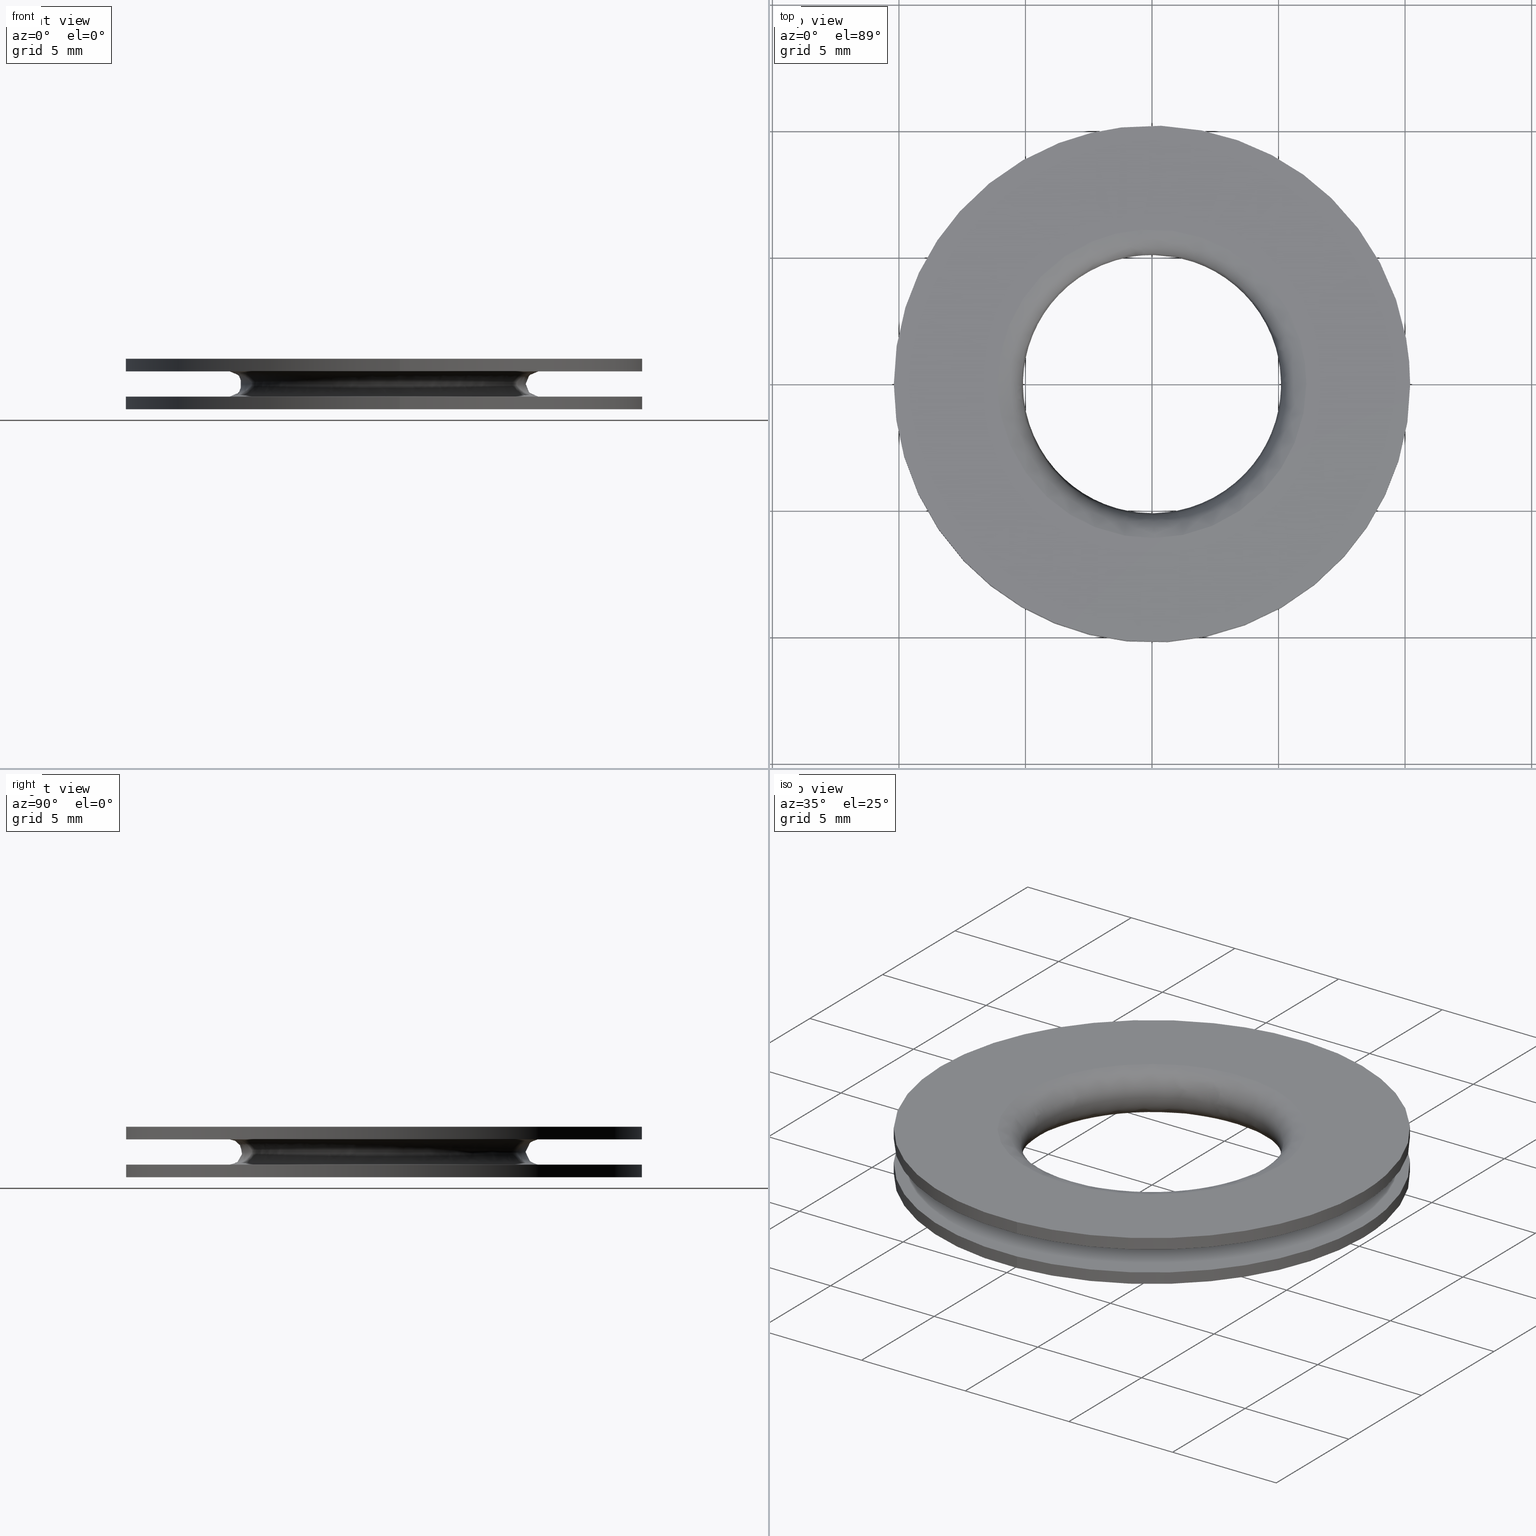
[diagram: canonical four-view strip — front | top / right | iso, engineering-drawing reading convention]
A machine part, canonical four-view strip (front | top / right | iso — engineering-drawing reading convention). The complete STEP part file that produces these views, byte-faithful:
ISO-10303-21;
HEADER;
/****************************************************************
 * Generated by software with PDE/Lib inside                    *
 * PDElib Version 4.4.1-0003, patched  Thursday August 19 11:58 *
 * International Technegroup Inc. (www.iti-oh.com)              *
 ****************************************************************/
FILE_DESCRIPTION((''),'2;1');
FILE_NAME('','2005-07-15T13:06:22',(''),(''),'','CADfix','');
FILE_SCHEMA(('AUTOMOTIVE_DESIGN'));
ENDSEC;
DATA;
#5=APPLICATION_CONTEXT('automotive design');
#6=APPLICATION_PROTOCOL_DEFINITION('Draft International Standard','automotive_design',1998,#5);
#7=PRODUCT_CONTEXT('None',#5,'mechanical');
#8=PRODUCT('grommet','','None',(#7));
#9=PRODUCT_RELATED_PRODUCT_CATEGORY('part','description',(#8));
#10=PRODUCT_DEFINITION_FORMATION('None','None',#8);
#11=PRODUCT_DEFINITION_CONTEXT('part definition',#5,'design');
#12=PRODUCT_DEFINITION('None','None',#10,#11);
#18=(NAMED_UNIT(*)PLANE_ANGLE_UNIT()SI_UNIT($,.RADIAN.));
#19=DIMENSIONAL_EXPONENTS(0.0,0.0,0.0,0.0,0.0,0.0,0.0);
#20=PLANE_ANGLE_MEASURE_WITH_UNIT(PLANE_ANGLE_MEASURE(0.017453292500000),#18);
#24=(CONVERSION_BASED_UNIT('DEGREE',#20)NAMED_UNIT(#19)PLANE_ANGLE_UNIT());
#28=(NAMED_UNIT(*)SI_UNIT($,.STERADIAN.)SOLID_ANGLE_UNIT());
#32=(LENGTH_UNIT()NAMED_UNIT(*)SI_UNIT(.MILLI.,.METRE.));
#34=UNCERTAINTY_MEASURE_WITH_UNIT(LENGTH_MEASURE(0.001000000000000),#32,'DISTANCE_ACCURACY_VALUE','');
#36=(GEOMETRIC_REPRESENTATION_CONTEXT(3)GLOBAL_UNCERTAINTY_ASSIGNED_CONTEXT((#34))GLOBAL_UNIT_ASSIGNED_CONTEXT((#24,#28,#32))REPRESENTATION_CONTEXT('None','None'));
#37=AXIS2_PLACEMENT_3D('',#38,#39,#40);
#38=CARTESIAN_POINT('',(0.0,0.0,0.0));
#39=DIRECTION('',(0.0,0.0,1.0));
#40=DIRECTION('',(1.0,0.0,0.0));
#41=ADVANCED_BREP_SHAPE_REPRESENTATION('',(#37,#973),#36);
#42=PRODUCT_DEFINITION_SHAPE('','',#12);
#43=SHAPE_DEFINITION_REPRESENTATION(#42,#41);
#44=CARTESIAN_POINT('',(-1.203949075464702,10.128696175899870,2.012500000000001));
#45=CARTESIAN_POINT('',(-0.914070142492644,10.163152681188162,2.012500000000000));
#46=CARTESIAN_POINT('',(-0.622695042207002,10.180973945768240,2.012500000000000));
#47=CARTESIAN_POINT('',(9.558278903561243,10.803668987975243,2.012500000000000));
#48=CARTESIAN_POINT('',(10.180973945768240,0.622695042207002,2.012500000000000));
#49=CARTESIAN_POINT('',(10.803668987975243,-9.558278903561243,2.012500000000000));
#50=CARTESIAN_POINT('',(0.622695042207002,-10.180973945768240,2.012500000000000));
#51=CARTESIAN_POINT('',(-1.203949075464702,10.128696175899870,1.487187500000000));
#52=CARTESIAN_POINT('',(-0.914070142492644,10.163152681188162,1.487187499999999));
#53=CARTESIAN_POINT('',(-0.622695042207002,10.180973945768240,1.487187500000000));
#54=CARTESIAN_POINT('',(9.558278903561243,10.803668987975243,1.487187499999999));
#55=CARTESIAN_POINT('',(10.180973945768240,0.622695042207002,1.487187500000000));
#56=CARTESIAN_POINT('',(10.803668987975243,-9.558278903561243,1.487187499999999));
#57=CARTESIAN_POINT('',(0.622695042207002,-10.180973945768240,1.487187500000000));
#65=(BOUNDED_SURFACE()B_SPLINE_SURFACE(2,1,((#44,#51),(#45,#52),(#46,#53),(#47,#54),(#48,#55),(#49,#56),(#50,#57)),.UNSPECIFIED.,.F.,.F.,.U.)B_SPLINE_SURFACE_WITH_KNOTS((3,2,2,3),(2,2),(0.0,0.675996467518722,17.575908155486751,34.475819843454779),(0.0,1.0),.UNSPECIFIED.)GEOMETRIC_REPRESENTATION_ITEM()RATIONAL_B_SPLINE_SURFACE(((0.977505800795127,0.977505800795127),(0.988284271247462,0.988284271247462),(1.0,1.0),(0.707106781186548,0.707106781186548),(1.0,1.0),(0.707106781186548,0.707106781186548),(1.0,1.0)))REPRESENTATION_ITEM('')SURFACE());
#66=CARTESIAN_POINT('',(-1.203942625551559,10.128696942565650,1.500000000000203));
#67=VERTEX_POINT('',#66);
#68=CARTESIAN_POINT('',(10.199999000000000,0.0,1.500000000000000));
#69=VERTEX_POINT('',#68);
#70=CARTESIAN_POINT('',(-1.203942625551559,10.128696942565654,1.500000000000203));
#71=CARTESIAN_POINT('',(-0.604082702175272,10.199998999999998,1.500000000000000));
#72=CARTESIAN_POINT('',(0.0,10.199999000000000,1.500000000000000));
#73=CARTESIAN_POINT('',(10.199999000000002,10.199999000000002,1.500000000000000));
#74=CARTESIAN_POINT('',(10.199999000000000,0.0,1.500000000000000));
#82=(BOUNDED_CURVE()B_SPLINE_CURVE(2,(#70,#71,#72,#73,#74),.UNSPECIFIED.,.F.,.U.)B_SPLINE_CURVE_WITH_KNOTS((3,2,3),(0.229562581136241,0.250000000000000,0.500000000000000),.UNSPECIFIED.)CURVE()GEOMETRIC_REPRESENTATION_ITEM()RATIONAL_B_SPLINE_CURVE((0.956026965128767,0.976056074419019,1.0,0.707106781186548,1.0))REPRESENTATION_ITEM(''));
#83=EDGE_CURVE('',#67,#69,#82,.T.);
#84=ORIENTED_EDGE('',*,*,#83,.F.);
#85=CARTESIAN_POINT('',(-1.203942705108498,10.128696933109209,2.0));
#86=VERTEX_POINT('',#85);
#87=CARTESIAN_POINT('',(-1.203942705108498,10.128696933109209,2.0));
#88=CARTESIAN_POINT('',(-1.203942625551559,10.128696942565650,1.500000000000203));
#89=QUASI_UNIFORM_CURVE('',1,(#87,#88),.UNSPECIFIED.,.F.,.U.);
#90=EDGE_CURVE('',#86,#67,#89,.T.);
#91=ORIENTED_EDGE('',*,*,#90,.F.);
#92=CARTESIAN_POINT('',(10.199999000000000,0.0,2.0));
#93=VERTEX_POINT('',#92);
#94=CARTESIAN_POINT('',(-1.203942705108499,10.128696933109207,2.000000000000000));
#95=CARTESIAN_POINT('',(-0.604082742374266,10.199999000000000,2.000000000000000));
#96=CARTESIAN_POINT('',(0.0,10.199999000000000,2.0));
#97=CARTESIAN_POINT('',(10.199999000000002,10.199999000000002,2.000000000000000));
#98=CARTESIAN_POINT('',(10.199999000000000,0.0,2.0));
#106=(BOUNDED_CURVE()B_SPLINE_CURVE(2,(#94,#95,#96,#97,#98),.UNSPECIFIED.,.F.,.U.)B_SPLINE_CURVE_WITH_KNOTS((3,2,3),(0.229562579808786,0.250000000000000,0.500000000000000),.UNSPECIFIED.)CURVE()GEOMETRIC_REPRESENTATION_ITEM()RATIONAL_B_SPLINE_CURVE((0.956026962526900,0.976056072863809,1.0,0.707106781186548,1.0))REPRESENTATION_ITEM(''));
#107=EDGE_CURVE('',#86,#93,#106,.T.);
#108=ORIENTED_EDGE('',*,*,#107,.T.);
#109=CARTESIAN_POINT('',(0.622691443881657,-10.180974165849969,2.0));
#110=VERTEX_POINT('',#109);
#111=CARTESIAN_POINT('',(10.199999000000000,0.0,2.0));
#112=CARTESIAN_POINT('',(10.199999000000002,-9.595204339361704,2.000000000000000));
#113=CARTESIAN_POINT('',(0.622691443881657,-10.180974165849973,2.0));
#121=(BOUNDED_CURVE()B_SPLINE_CURVE(2,(#111,#112,#113),.UNSPECIFIED.,.F.,.U.)B_SPLINE_CURVE_WITH_KNOTS((3,3),(0.500000000000000,0.739333023226263),.UNSPECIFIED.)CURVE()GEOMETRIC_REPRESENTATION_ITEM()RATIONAL_B_SPLINE_CURVE((1.0,0.719603921835620,0.976072172374189))REPRESENTATION_ITEM(''));
#122=EDGE_CURVE('',#93,#110,#121,.T.);
#123=ORIENTED_EDGE('',*,*,#122,.T.);
#124=CARTESIAN_POINT('',(0.622691398963892,-10.180974168597229,1.500000000000134));
#125=VERTEX_POINT('',#124);
#126=CARTESIAN_POINT('',(0.622691443881657,-10.180974165849969,2.0));
#127=CARTESIAN_POINT('',(0.622691398963892,-10.180974168597229,1.500000000000134));
#128=QUASI_UNIFORM_CURVE('',1,(#126,#127),.UNSPECIFIED.,.F.,.U.);
#129=EDGE_CURVE('',#110,#125,#128,.T.);
#130=ORIENTED_EDGE('',*,*,#129,.T.);
#131=CARTESIAN_POINT('',(10.199999000000000,0.0,1.500000000000000));
#132=CARTESIAN_POINT('',(10.199999000000002,-9.595204381774195,1.500000000000000));
#133=CARTESIAN_POINT('',(0.622691398963892,-10.180974168597228,1.500000000000133));
#141=(BOUNDED_CURVE()B_SPLINE_CURVE(2,(#131,#132,#133),.UNSPECIFIED.,.F.,.U.)B_SPLINE_CURVE_WITH_KNOTS((3,3),(0.500000000000000,0.739333023987528),.UNSPECIFIED.)CURVE()GEOMETRIC_REPRESENTATION_ITEM()RATIONAL_B_SPLINE_CURVE((1.0,0.719603920943743,0.976072174005725))REPRESENTATION_ITEM(''));
#142=EDGE_CURVE('',#69,#125,#141,.T.);
#143=ORIENTED_EDGE('',*,*,#142,.F.);
#144=EDGE_LOOP('',(#84,#91,#108,#123,#130,#143));
#145=FACE_OUTER_BOUND('',#144,.T.);
#146=ADVANCED_FACE('',(#145),#65,.T.);
#147=CARTESIAN_POINT('',(0.622695042207002,-10.180973945768240,2.012500000000000));
#148=CARTESIAN_POINT('',(-9.558278903561243,-10.803668987975243,2.012500000000000));
#149=CARTESIAN_POINT('',(-10.180973945768240,-0.622695042207002,2.012500000000000));
#150=CARTESIAN_POINT('',(-10.769018150885582,8.991742725019419,2.012500000000000));
#151=CARTESIAN_POINT('',(-1.203949075464702,10.128696175899870,2.012500000000001));
#152=CARTESIAN_POINT('',(0.622695042207002,-10.180973945768240,1.487187500000000));
#153=CARTESIAN_POINT('',(-9.558278903561243,-10.803668987975243,1.487187499999999));
#154=CARTESIAN_POINT('',(-10.180973945768240,-0.622695042207002,1.487187500000000));
#155=CARTESIAN_POINT('',(-10.769018150885582,8.991742725019419,1.487187500000000));
#156=CARTESIAN_POINT('',(-1.203949075464702,10.128696175899870,1.487187500000000));
#164=(BOUNDED_SURFACE()B_SPLINE_SURFACE(2,1,((#147,#152),(#148,#153),(#149,#154),(#150,#155),(#151,#156)),.UNSPECIFIED.,.F.,.F.,.U.)B_SPLINE_SURFACE_WITH_KNOTS((3,2,3),(2,2),(0.0,16.899911687968029,33.123826908417342),(0.0,1.0),.UNSPECIFIED.)GEOMETRIC_REPRESENTATION_ITEM()RATIONAL_B_SPLINE_SURFACE(((1.0,1.0),(0.707106781186548,0.707106781186548),(1.0,1.0),(0.718822509939086,0.718822509939086),(0.977505800795127,0.977505800795127)))REPRESENTATION_ITEM('')SURFACE());
#165=CARTESIAN_POINT('',(-10.199999000000000,0.0,1.500000000000000));
#166=VERTEX_POINT('',#165);
#167=CARTESIAN_POINT('',(-10.199999000000000,0.0,1.500000000000000));
#168=CARTESIAN_POINT('',(-10.199999000000000,9.059385086118825,1.500000000000000));
#169=CARTESIAN_POINT('',(-1.203942625551559,10.128696942565654,1.500000000000203));
#177=(BOUNDED_CURVE()B_SPLINE_CURVE(2,(#167,#168,#169),.UNSPECIFIED.,.F.,.U.)B_SPLINE_CURVE_WITH_KNOTS((3,3),(0.0,0.229562581136241),.UNSPECIFIED.)CURVE()GEOMETRIC_REPRESENTATION_ITEM()RATIONAL_B_SPLINE_CURVE((1.0,0.731050706767529,0.956026965128767))REPRESENTATION_ITEM(''));
#178=EDGE_CURVE('',#166,#67,#177,.T.);
#179=ORIENTED_EDGE('',*,*,#178,.F.);
#180=CARTESIAN_POINT('',(0.622691398963892,-10.180974168597228,1.500000000000133));
#181=CARTESIAN_POINT('',(0.311636328363689,-10.199999000000005,1.500000000000000));
#182=CARTESIAN_POINT('',(0.0,-10.199999000000000,1.500000000000000));
#183=CARTESIAN_POINT('',(-10.199999000000002,-10.199999000000002,1.500000000000000));
#184=CARTESIAN_POINT('',(-10.199999000000000,0.0,1.500000000000000));
#192=(BOUNDED_CURVE()B_SPLINE_CURVE(2,(#180,#181,#182,#183,#184),.UNSPECIFIED.,.F.,.U.)B_SPLINE_CURVE_WITH_KNOTS((3,2,3),(0.739333023987528,0.750000000000000,1.0),.UNSPECIFIED.)CURVE()GEOMETRIC_REPRESENTATION_ITEM()RATIONAL_B_SPLINE_CURVE((0.976072174005725,0.987502860242804,1.0,0.707106781186548,1.0))REPRESENTATION_ITEM(''));
#193=EDGE_CURVE('',#125,#166,#192,.T.);
#194=ORIENTED_EDGE('',*,*,#193,.F.);
#195=ORIENTED_EDGE('',*,*,#129,.F.);
#196=CARTESIAN_POINT('',(-10.199999000000000,0.0,2.0));
#197=VERTEX_POINT('',#196);
#198=CARTESIAN_POINT('',(0.622691443881657,-10.180974165849973,2.0));
#199=CARTESIAN_POINT('',(0.311636350885541,-10.199999000000000,2.000000000000000));
#200=CARTESIAN_POINT('',(0.0,-10.199999000000000,2.0));
#201=CARTESIAN_POINT('',(-10.199999000000002,-10.199999000000002,2.000000000000000));
#202=CARTESIAN_POINT('',(-10.199999000000000,0.0,2.0));
#210=(BOUNDED_CURVE()B_SPLINE_CURVE(2,(#198,#199,#200,#201,#202),.UNSPECIFIED.,.F.,.U.)B_SPLINE_CURVE_WITH_KNOTS((3,2,3),(0.739333023226263,0.750000000000000,1.0),.UNSPECIFIED.)CURVE()GEOMETRIC_REPRESENTATION_ITEM()RATIONAL_B_SPLINE_CURVE((0.976072172374189,0.987502859350927,1.0,0.707106781186548,1.0))REPRESENTATION_ITEM(''));
#211=EDGE_CURVE('',#110,#197,#210,.T.);
#212=ORIENTED_EDGE('',*,*,#211,.T.);
#213=CARTESIAN_POINT('',(-10.199999000000000,0.0,2.0));
#214=CARTESIAN_POINT('',(-10.199999000000002,9.059385014459993,1.999999999999999));
#215=CARTESIAN_POINT('',(-1.203942705108499,10.128696933109207,2.000000000000000));
#223=(BOUNDED_CURVE()B_SPLINE_CURVE(2,(#213,#214,#215),.UNSPECIFIED.,.F.,.U.)B_SPLINE_CURVE_WITH_KNOTS((3,3),(0.0,0.229562579808786),.UNSPECIFIED.)CURVE()GEOMETRIC_REPRESENTATION_ITEM()RATIONAL_B_SPLINE_CURVE((1.0,0.731050708322738,0.956026962526900))REPRESENTATION_ITEM(''));
#224=EDGE_CURVE('',#197,#86,#223,.T.);
#225=ORIENTED_EDGE('',*,*,#224,.T.);
#226=ORIENTED_EDGE('',*,*,#90,.T.);
#227=EDGE_LOOP('',(#179,#194,#195,#212,#225,#226));
#228=FACE_OUTER_BOUND('',#227,.T.);
#229=ADVANCED_FACE('',(#228),#164,.T.);
#230=CARTESIAN_POINT('',(-1.203949075464702,10.128696175899870,0.512500000000000));
#231=CARTESIAN_POINT('',(-0.914070142492644,10.163152681188162,0.512500000000000));
#232=CARTESIAN_POINT('',(-0.622695042207002,10.180973945768240,0.512500000000000));
#233=CARTESIAN_POINT('',(9.558278903561243,10.803668987975243,0.512500000000000));
#234=CARTESIAN_POINT('',(10.180973945768240,0.622695042207002,0.512500000000000));
#235=CARTESIAN_POINT('',(10.803668987975243,-9.558278903561243,0.512500000000000));
#236=CARTESIAN_POINT('',(0.622695042207002,-10.180973945768240,0.512500000000000));
#237=CARTESIAN_POINT('',(-1.203949075464702,10.128696175899870,-0.012812500000000));
#238=CARTESIAN_POINT('',(-0.914070142492644,10.163152681188162,-0.012812500000000));
#239=CARTESIAN_POINT('',(-0.622695042207002,10.180973945768240,-0.012812500000000));
#240=CARTESIAN_POINT('',(9.558278903561243,10.803668987975243,-0.012812500000000));
#241=CARTESIAN_POINT('',(10.180973945768240,0.622695042207002,-0.012812500000000));
#242=CARTESIAN_POINT('',(10.803668987975243,-9.558278903561243,-0.012812500000000));
#243=CARTESIAN_POINT('',(0.622695042207002,-10.180973945768240,-0.012812500000000));
#251=(BOUNDED_SURFACE()B_SPLINE_SURFACE(2,1,((#230,#237),(#231,#238),(#232,#239),(#233,#240),(#234,#241),(#235,#242),(#236,#243)),.UNSPECIFIED.,.F.,.F.,.U.)B_SPLINE_SURFACE_WITH_KNOTS((3,2,2,3),(2,2),(0.0,0.675996467518722,17.575908155486751,34.475819843454779),(0.0,1.0),.UNSPECIFIED.)GEOMETRIC_REPRESENTATION_ITEM()RATIONAL_B_SPLINE_SURFACE(((0.977505800795127,0.977505800795127),(0.988284271247462,0.988284271247462),(1.0,1.0),(0.707106781186548,0.707106781186548),(1.0,1.0),(0.707106781186548,0.707106781186548),(1.0,1.0)))REPRESENTATION_ITEM('')SURFACE());
#252=CARTESIAN_POINT('',(-1.203942627444646,10.128696942340630,0.499999999999797));
#253=VERTEX_POINT('',#252);
#254=CARTESIAN_POINT('',(10.199999000000000,0.0,0.500000000000000));
#255=VERTEX_POINT('',#254);
#256=CARTESIAN_POINT('',(-1.203942627444646,10.128696942340632,0.499999999999797));
#257=CARTESIAN_POINT('',(-0.604082703131821,10.199998999999998,0.500000000000000));
#258=CARTESIAN_POINT('',(0.0,10.199999000000000,0.500000000000000));
#259=CARTESIAN_POINT('',(10.199999000000002,10.199999000000002,0.500000000000000));
#260=CARTESIAN_POINT('',(10.199999000000000,0.0,0.500000000000000));
#268=(BOUNDED_CURVE()B_SPLINE_CURVE(2,(#256,#257,#258,#259,#260),.UNSPECIFIED.,.F.,.U.)B_SPLINE_CURVE_WITH_KNOTS((3,2,3),(0.229562581104653,0.250000000000000,0.500000000000000),.UNSPECIFIED.)CURVE()GEOMETRIC_REPRESENTATION_ITEM()RATIONAL_B_SPLINE_CURVE((0.956026965066855,0.976056074382012,1.0,0.707106781186548,1.0))REPRESENTATION_ITEM(''));
#269=EDGE_CURVE('',#253,#255,#268,.T.);
#270=ORIENTED_EDGE('',*,*,#269,.T.);
#271=CARTESIAN_POINT('',(0.622691400032725,-10.180974168531860,0.499999999999866));
#272=VERTEX_POINT('',#271);
#273=CARTESIAN_POINT('',(10.199999000000000,0.0,0.500000000000000));
#274=CARTESIAN_POINT('',(10.199999000000000,-9.595204380764978,0.500000000000000));
#275=CARTESIAN_POINT('',(0.622691400032725,-10.180974168531858,0.499999999999866));
#283=(BOUNDED_CURVE()B_SPLINE_CURVE(2,(#273,#274,#275),.UNSPECIFIED.,.F.,.U.)B_SPLINE_CURVE_WITH_KNOTS((3,3),(0.500000000000000,0.739333023969413),.UNSPECIFIED.)CURVE()GEOMETRIC_REPRESENTATION_ITEM()RATIONAL_B_SPLINE_CURVE((1.0,0.719603920964966,0.976072173966902))REPRESENTATION_ITEM(''));
#284=EDGE_CURVE('',#255,#272,#283,.T.);
#285=ORIENTED_EDGE('',*,*,#284,.T.);
#286=CARTESIAN_POINT('',(0.622691443881657,-10.180974165849969,-2.602085E-017));
#287=VERTEX_POINT('',#286);
#288=CARTESIAN_POINT('',(0.622691400032725,-10.180974168531860,0.499999999999866));
#289=CARTESIAN_POINT('',(0.622691443881657,-10.180974165849969,-2.602085E-017));
#290=QUASI_UNIFORM_CURVE('',1,(#288,#289),.UNSPECIFIED.,.F.,.U.);
#291=EDGE_CURVE('',#272,#287,#290,.T.);
#292=ORIENTED_EDGE('',*,*,#291,.T.);
#293=CARTESIAN_POINT('',(10.199999000000000,0.0,0.0));
#294=VERTEX_POINT('',#293);
#295=CARTESIAN_POINT('',(10.199999000000000,0.0,0.0));
#296=CARTESIAN_POINT('',(10.199999000000002,-9.595204339361704,0.0));
#297=CARTESIAN_POINT('',(0.622691443881657,-10.180974165849973,-2.602085E-017));
#305=(BOUNDED_CURVE()B_SPLINE_CURVE(2,(#295,#296,#297),.UNSPECIFIED.,.F.,.U.)B_SPLINE_CURVE_WITH_KNOTS((3,3),(0.500000000000000,0.739333023226263),.UNSPECIFIED.)CURVE()GEOMETRIC_REPRESENTATION_ITEM()RATIONAL_B_SPLINE_CURVE((1.0,0.719603921835620,0.976072172374189))REPRESENTATION_ITEM(''));
#306=EDGE_CURVE('',#294,#287,#305,.T.);
#307=ORIENTED_EDGE('',*,*,#306,.F.);
#308=CARTESIAN_POINT('',(-1.203942705108498,10.128696933109209,-2.573232E-017));
#309=VERTEX_POINT('',#308);
#310=CARTESIAN_POINT('',(-1.203942705108499,10.128696933109207,-2.573232E-017));
#311=CARTESIAN_POINT('',(-0.604082742374266,10.199999000000000,0.0));
#312=CARTESIAN_POINT('',(0.0,10.199999000000000,0.0));
#313=CARTESIAN_POINT('',(10.199999000000002,10.199999000000002,0.0));
#314=CARTESIAN_POINT('',(10.199999000000000,0.0,0.0));
#322=(BOUNDED_CURVE()B_SPLINE_CURVE(2,(#310,#311,#312,#313,#314),.UNSPECIFIED.,.F.,.U.)B_SPLINE_CURVE_WITH_KNOTS((3,2,3),(0.229562579808786,0.250000000000000,0.500000000000000),.UNSPECIFIED.)CURVE()GEOMETRIC_REPRESENTATION_ITEM()RATIONAL_B_SPLINE_CURVE((0.956026962526900,0.976056072863809,1.0,0.707106781186548,1.0))REPRESENTATION_ITEM(''));
#323=EDGE_CURVE('',#309,#294,#322,.T.);
#324=ORIENTED_EDGE('',*,*,#323,.F.);
#325=CARTESIAN_POINT('',(-1.203942627444646,10.128696942340630,0.499999999999797));
#326=CARTESIAN_POINT('',(-1.203942705108498,10.128696933109209,-2.573232E-017));
#327=QUASI_UNIFORM_CURVE('',1,(#325,#326),.UNSPECIFIED.,.F.,.U.);
#328=EDGE_CURVE('',#253,#309,#327,.T.);
#329=ORIENTED_EDGE('',*,*,#328,.F.);
#330=EDGE_LOOP('',(#270,#285,#292,#307,#324,#329));
#331=FACE_OUTER_BOUND('',#330,.T.);
#332=ADVANCED_FACE('',(#331),#251,.T.);
#333=CARTESIAN_POINT('',(0.622695042207002,-10.180973945768240,0.512500000000000));
#334=CARTESIAN_POINT('',(-9.558278903561243,-10.803668987975243,0.512500000000000));
#335=CARTESIAN_POINT('',(-10.180973945768240,-0.622695042207002,0.512500000000000));
#336=CARTESIAN_POINT('',(-10.769018150885582,8.991742725019419,0.512500000000000));
#337=CARTESIAN_POINT('',(-1.203949075464702,10.128696175899870,0.512500000000000));
#338=CARTESIAN_POINT('',(0.622695042207002,-10.180973945768240,-0.012812500000000));
#339=CARTESIAN_POINT('',(-9.558278903561243,-10.803668987975243,-0.012812500000000));
#340=CARTESIAN_POINT('',(-10.180973945768240,-0.622695042207002,-0.012812500000000));
#341=CARTESIAN_POINT('',(-10.769018150885582,8.991742725019419,-0.012812500000000));
#342=CARTESIAN_POINT('',(-1.203949075464702,10.128696175899870,-0.012812500000000));
#350=(BOUNDED_SURFACE()B_SPLINE_SURFACE(2,1,((#333,#338),(#334,#339),(#335,#340),(#336,#341),(#337,#342)),.UNSPECIFIED.,.F.,.F.,.U.)B_SPLINE_SURFACE_WITH_KNOTS((3,2,3),(2,2),(0.0,16.899911687968029,33.123826908417342),(0.0,1.0),.UNSPECIFIED.)GEOMETRIC_REPRESENTATION_ITEM()RATIONAL_B_SPLINE_SURFACE(((1.0,1.0),(0.707106781186548,0.707106781186548),(1.0,1.0),(0.718822509939086,0.718822509939086),(0.977505800795127,0.977505800795127)))REPRESENTATION_ITEM('')SURFACE());
#351=CARTESIAN_POINT('',(-10.199999000000000,0.0,0.500000000000000));
#352=VERTEX_POINT('',#351);
#353=CARTESIAN_POINT('',(-10.199999000000000,0.0,0.500000000000000));
#354=CARTESIAN_POINT('',(-10.199999000000002,9.059385084413679,0.500000000000000));
#355=CARTESIAN_POINT('',(-1.203942627444646,10.128696942340632,0.499999999999797));
#363=(BOUNDED_CURVE()B_SPLINE_CURVE(2,(#353,#354,#355),.UNSPECIFIED.,.F.,.U.)B_SPLINE_CURVE_WITH_KNOTS((3,3),(0.0,0.229562581104653),.UNSPECIFIED.)CURVE()GEOMETRIC_REPRESENTATION_ITEM()RATIONAL_B_SPLINE_CURVE((1.0,0.731050706804535,0.956026965066855))REPRESENTATION_ITEM(''));
#364=EDGE_CURVE('',#352,#253,#363,.T.);
#365=ORIENTED_EDGE('',*,*,#364,.T.);
#366=ORIENTED_EDGE('',*,*,#328,.T.);
#367=CARTESIAN_POINT('',(-10.199999000000000,0.0,0.0));
#368=VERTEX_POINT('',#367);
#369=CARTESIAN_POINT('',(-10.199999000000000,0.0,0.0));
#370=CARTESIAN_POINT('',(-10.199999000000002,9.059385014459993,0.0));
#371=CARTESIAN_POINT('',(-1.203942705108499,10.128696933109207,-2.573232E-017));
#379=(BOUNDED_CURVE()B_SPLINE_CURVE(2,(#369,#370,#371),.UNSPECIFIED.,.F.,.U.)B_SPLINE_CURVE_WITH_KNOTS((3,3),(0.0,0.229562579808786),.UNSPECIFIED.)CURVE()GEOMETRIC_REPRESENTATION_ITEM()RATIONAL_B_SPLINE_CURVE((1.0,0.731050708322738,0.956026962526900))REPRESENTATION_ITEM(''));
#380=EDGE_CURVE('',#368,#309,#379,.T.);
#381=ORIENTED_EDGE('',*,*,#380,.F.);
#382=CARTESIAN_POINT('',(0.622691443881657,-10.180974165849973,-2.602085E-017));
#383=CARTESIAN_POINT('',(0.311636350885541,-10.199999000000000,0.0));
#384=CARTESIAN_POINT('',(0.0,-10.199999000000000,0.0));
#385=CARTESIAN_POINT('',(-10.199999000000002,-10.199999000000002,0.0));
#386=CARTESIAN_POINT('',(-10.199999000000000,0.0,0.0));
#394=(BOUNDED_CURVE()B_SPLINE_CURVE(2,(#382,#383,#384,#385,#386),.UNSPECIFIED.,.F.,.U.)B_SPLINE_CURVE_WITH_KNOTS((3,2,3),(0.739333023226263,0.750000000000000,1.0),.UNSPECIFIED.)CURVE()GEOMETRIC_REPRESENTATION_ITEM()RATIONAL_B_SPLINE_CURVE((0.976072172374189,0.987502859350927,1.0,0.707106781186548,1.0))REPRESENTATION_ITEM(''));
#395=EDGE_CURVE('',#287,#368,#394,.T.);
#396=ORIENTED_EDGE('',*,*,#395,.F.);
#397=ORIENTED_EDGE('',*,*,#291,.F.);
#398=CARTESIAN_POINT('',(0.622691400032725,-10.180974168531858,0.499999999999866));
#399=CARTESIAN_POINT('',(0.311636328899603,-10.199999000000004,0.500000000000000));
#400=CARTESIAN_POINT('',(0.0,-10.199999000000000,0.500000000000000));
#401=CARTESIAN_POINT('',(-10.199999000000002,-10.199999000000002,0.500000000000000));
#402=CARTESIAN_POINT('',(-10.199999000000000,0.0,0.500000000000000));
#410=(BOUNDED_CURVE()B_SPLINE_CURVE(2,(#398,#399,#400,#401,#402),.UNSPECIFIED.,.F.,.U.)B_SPLINE_CURVE_WITH_KNOTS((3,2,3),(0.739333023969413,0.750000000000000,1.0),.UNSPECIFIED.)CURVE()GEOMETRIC_REPRESENTATION_ITEM()RATIONAL_B_SPLINE_CURVE((0.976072173966902,0.987502860221582,1.0,0.707106781186548,1.0))REPRESENTATION_ITEM(''));
#411=EDGE_CURVE('',#272,#352,#410,.T.);
#412=ORIENTED_EDGE('',*,*,#411,.T.);
#413=EDGE_LOOP('',(#365,#366,#381,#396,#397,#412));
#414=FACE_OUTER_BOUND('',#413,.T.);
#415=ADVANCED_FACE('',(#414),#350,.T.);
#416=CARTESIAN_POINT('',(-0.430321636716888,6.155950344685884,0.505062580793688));
#417=CARTESIAN_POINT('',(-0.254141152637888,6.168265953165718,0.505062580793688));
#418=CARTESIAN_POINT('',(-0.077544686311253,6.170485246630920,0.505062580793688));
#419=CARTESIAN_POINT('',(6.092940560319667,6.248029932942172,0.505062580793688));
#420=CARTESIAN_POINT('',(6.170485246630920,0.077544686311253,0.505062580793688));
#421=CARTESIAN_POINT('',(6.248029932942172,-6.092940560319665,0.505062580793688));
#422=CARTESIAN_POINT('',(0.077544686311248,-6.170485246630920,0.505062580793688));
#423=CARTESIAN_POINT('',(-0.390505970247348,5.586368792623893,0.423188206711083));
#424=CARTESIAN_POINT('',(-0.230626649749269,5.597544894934939,0.423188206711083));
#425=CARTESIAN_POINT('',(-0.070369835912816,5.599558847462413,0.423188206711083));
#426=CARTESIAN_POINT('',(5.529189011549597,5.669928683375229,0.423188206711083));
#427=CARTESIAN_POINT('',(5.599558847462413,0.070369835912817,0.423188206711083));
#428=CARTESIAN_POINT('',(5.669928683375229,-5.529189011549597,0.423188206711083));
#429=CARTESIAN_POINT('',(0.070369835912812,-5.599558847462413,0.423188206711083));
#430=CARTESIAN_POINT('',(-0.390505970247348,5.586368792623896,1.000000000000000));
#431=CARTESIAN_POINT('',(-0.230626649749269,5.597544894934940,1.000000000000000));
#432=CARTESIAN_POINT('',(-0.070369835912816,5.599558847462412,1.000000000000000));
#433=CARTESIAN_POINT('',(5.529189011549596,5.669928683375229,1.000000000000000));
#434=CARTESIAN_POINT('',(5.599558847462412,0.070369835912817,1.000000000000000));
#435=CARTESIAN_POINT('',(5.669928683375229,-5.529189011549596,1.000000000000000));
#436=CARTESIAN_POINT('',(0.070369835912812,-5.599558847462412,1.000000000000000));
#437=CARTESIAN_POINT('',(-0.390505970247348,5.586368792623896,1.576812656901736));
#438=CARTESIAN_POINT('',(-0.230626649749269,5.597544894934940,1.576812656901736));
#439=CARTESIAN_POINT('',(-0.070369835912816,5.599558847462413,1.576812656901735));
#440=CARTESIAN_POINT('',(5.529189011549597,5.669928683375229,1.576812656901736));
#441=CARTESIAN_POINT('',(5.599558847462413,0.070369835912817,1.576812656901735));
#442=CARTESIAN_POINT('',(5.669928683375229,-5.529189011549597,1.576812656901736));
#443=CARTESIAN_POINT('',(0.070369835912812,-5.599558847462413,1.576812656901735));
#444=CARTESIAN_POINT('',(-0.430321687867953,6.155951076425562,1.494937314022000));
#445=CARTESIAN_POINT('',(-0.254141182846898,6.168266686369314,1.494937314022000));
#446=CARTESIAN_POINT('',(-0.077544695528761,6.170485980098318,1.494937314022000));
#447=CARTESIAN_POINT('',(6.092941284569554,6.248030675627077,1.494937314021999));
#448=CARTESIAN_POINT('',(6.170485980098318,0.077544695528761,1.494937314022000));
#449=CARTESIAN_POINT('',(6.248030675627077,-6.092941284569554,1.494937314021999));
#450=CARTESIAN_POINT('',(0.077544695528756,-6.170485980098318,1.494937314022000));
#458=(BOUNDED_SURFACE()B_SPLINE_SURFACE(2,2,((#416,#423,#430,#437,#444),(#417,#424,#431,#438,#445),(#418,#425,#432,#439,#446),(#419,#426,#433,#440,#447),(#420,#427,#434,#441,#448),(#421,#428,#435,#442,#449),(#422,#429,#436,#443,#450)),.UNSPECIFIED.,.F.,.F.,.U.)B_SPLINE_SURFACE_WITH_KNOTS((3,2,2,3),(3,2,3),(0.0,0.408975737708119,10.633378931161820,20.857782124615522),(0.0,0.913128015422518,1.826256919891498),.UNSPECIFIED.)GEOMETRIC_REPRESENTATION_ITEM()RATIONAL_B_SPLINE_SURFACE(((0.963494698001351,0.635663715482510,0.977505821353428,0.635663382655666,0.963495336372445),(0.974118665515234,0.642672856972390,0.988284282420452,0.642672520475633,0.974119310925323),(0.985666455333557,0.650291488394807,1.0,0.650291147909016,0.985667108394725),(0.696971434554465,0.459825521191861,0.707106781186548,0.459825280432049,0.696971896338446),(0.985666455333557,0.650291488394807,1.0,0.650291147909016,0.985667108394725),(0.696971434554465,0.459825521191861,0.707106781186548,0.459825280432049,0.696971896338446),(0.985666455333557,0.650291488394807,1.0,0.650291147909016,0.985667108394725)))REPRESENTATION_ITEM('')SURFACE());
#459=CARTESIAN_POINT('',(-0.425372906173854,6.085151633952344,1.500000000000000));
#460=VERTEX_POINT('',#459);
#461=CARTESIAN_POINT('',(6.100001026179940,0.0,1.500000000000000));
#462=VERTEX_POINT('',#461);
#463=CARTESIAN_POINT('',(-0.425372906173854,6.085151633952344,1.500000000000000));
#464=CARTESIAN_POINT('',(-0.212945642674467,6.100001026179940,1.500000000000000));
#465=CARTESIAN_POINT('',(0.0,6.100001026179940,1.500000000000000));
#466=CARTESIAN_POINT('',(6.100001026179941,6.100001026179941,1.500000000000000));
#467=CARTESIAN_POINT('',(6.100001026179940,0.0,1.500000000000000));
#475=(BOUNDED_CURVE()B_SPLINE_CURVE(2,(#463,#464,#465,#466,#467),.UNSPECIFIED.,.F.,.U.)B_SPLINE_CURVE_WITH_KNOTS((3,2,3),(0.237833686534251,0.250000000000000,0.500000000000000),.UNSPECIFIED.)CURVE()GEOMETRIC_REPRESENTATION_ITEM()RATIONAL_B_SPLINE_CURVE((0.972879876385198,0.985746277151693,1.0,0.707106781186548,1.0))REPRESENTATION_ITEM(''));
#476=EDGE_CURVE('',#460,#462,#475,.T.);
#477=ORIENTED_EDGE('',*,*,#476,.T.);
#478=CARTESIAN_POINT('',(0.076651915141022,-6.099520192318012,1.499999999998727));
#479=VERTEX_POINT('',#478);
#480=CARTESIAN_POINT('',(6.100001026179940,0.0,1.500000000000000));
#481=CARTESIAN_POINT('',(6.100001026179941,-6.023824724975726,1.500000000000000));
#482=CARTESIAN_POINT('',(0.076651915141022,-6.099520192318013,1.499999999998727));
#490=(BOUNDED_CURVE()B_SPLINE_CURVE(2,(#480,#481,#482),.UNSPECIFIED.,.F.,.U.)B_SPLINE_CURVE_WITH_KNOTS((3,3),(0.500000000000000,0.747784323339047),.UNSPECIFIED.)CURVE()GEOMETRIC_REPRESENTATION_ITEM()RATIONAL_B_SPLINE_CURVE((1.0,0.709702607862853,0.994854358748050))REPRESENTATION_ITEM(''));
#491=EDGE_CURVE('',#462,#479,#490,.T.);
#492=ORIENTED_EDGE('',*,*,#491,.T.);
#493=CARTESIAN_POINT('',(0.076652855855130,-6.099519369557932,0.500000000000000));
#494=VERTEX_POINT('',#493);
#495=CARTESIAN_POINT('',(0.076652855855130,-6.099519369557932,0.500000000000000));
#496=CARTESIAN_POINT('',(0.070369835912816,-5.599558847462412,0.500000000012765));
#497=CARTESIAN_POINT('',(0.070369835912816,-5.599558847462412,1.000000000000000));
#498=CARTESIAN_POINT('',(0.070369835912816,-5.599558847462411,1.500000810868345));
#499=CARTESIAN_POINT('',(0.076651915141022,-6.099520192318012,1.499999999998728));
#507=(BOUNDED_CURVE()B_SPLINE_CURVE(2,(#495,#496,#497,#498,#499),.UNSPECIFIED.,.F.,.U.)B_SPLINE_CURVE_WITH_KNOTS((3,2,3),(-3.781082537376819,-2.0,-0.218915492515559),.UNSPECIFIED.)CURVE()GEOMETRIC_REPRESENTATION_ITEM()RATIONAL_B_SPLINE_CURVE((0.930396133914804,0.682054299135544,1.0,0.682053947446481,0.930396683311869))REPRESENTATION_ITEM(''));
#508=EDGE_CURVE('',#494,#479,#507,.T.);
#509=ORIENTED_EDGE('',*,*,#508,.F.);
#510=CARTESIAN_POINT('',(6.100001000000000,0.0,0.500000000000000));
#511=VERTEX_POINT('',#510);
#512=CARTESIAN_POINT('',(6.100001000000000,0.0,0.500000000000000));
#513=CARTESIAN_POINT('',(6.100001000000001,-6.023823759945135,0.500000000000000));
#514=CARTESIAN_POINT('',(0.076652855855130,-6.099519369557932,0.500000000000000));
#522=(BOUNDED_CURVE()B_SPLINE_CURVE(2,(#512,#513,#514),.UNSPECIFIED.,.F.,.U.)B_SPLINE_CURVE_WITH_KNOTS((3,3),(0.500000000000000,0.747784295921687),.UNSPECIFIED.)CURVE()GEOMETRIC_REPRESENTATION_ITEM()RATIONAL_B_SPLINE_CURVE((1.0,0.709702639984288,0.994854295643917))REPRESENTATION_ITEM(''));
#523=EDGE_CURVE('',#511,#494,#522,.T.);
#524=ORIENTED_EDGE('',*,*,#523,.F.);
#525=CARTESIAN_POINT('',(-0.425372904344310,6.085151607728106,0.500000000000000));
#526=VERTEX_POINT('',#525);
#527=CARTESIAN_POINT('',(-0.425372904344310,6.085151607728106,0.500000000000000));
#528=CARTESIAN_POINT('',(-0.212945641764163,6.100000999999999,0.500000000000000));
#529=CARTESIAN_POINT('',(0.0,6.100001000000000,0.500000000000000));
#530=CARTESIAN_POINT('',(6.100001000000002,6.100001000000002,0.500000000000000));
#531=CARTESIAN_POINT('',(6.100001000000000,0.0,0.500000000000000));
#539=(BOUNDED_CURVE()B_SPLINE_CURVE(2,(#527,#528,#529,#530,#531),.UNSPECIFIED.,.F.,.U.)B_SPLINE_CURVE_WITH_KNOTS((3,2,3),(0.237833686534047,0.250000000000000,0.500000000000000),.UNSPECIFIED.)CURVE()GEOMETRIC_REPRESENTATION_ITEM()RATIONAL_B_SPLINE_CURVE((0.972879876384767,0.985746277151455,1.0,0.707106781186548,1.0))REPRESENTATION_ITEM(''));
#540=EDGE_CURVE('',#526,#511,#539,.T.);
#541=ORIENTED_EDGE('',*,*,#540,.F.);
#542=CARTESIAN_POINT('',(-0.425372904344310,6.085151607728106,0.500000000000000));
#543=CARTESIAN_POINT('',(-0.390506278555729,5.586368771072093,0.500000000527002));
#544=CARTESIAN_POINT('',(-0.390506278555729,5.586368771072094,1.000000000000000));
#545=CARTESIAN_POINT('',(-0.390506278555729,5.586368771072092,1.500000025869017));
#546=CARTESIAN_POINT('',(-0.425372906173854,6.085151633952344,1.499999999999999));
#554=(BOUNDED_CURVE()B_SPLINE_CURVE(2,(#542,#543,#544,#545,#546),.UNSPECIFIED.,.F.,.U.)B_SPLINE_CURVE_WITH_KNOTS((3,2,3),(-3.781082536127432,-2.0,-0.218917399741063),.UNSPECIFIED.)CURVE()GEOMETRIC_REPRESENTATION_ITEM()RATIONAL_B_SPLINE_CURVE((0.909467617598506,0.666712034080263,0.977505800795127,0.666712022889501,0.909467635080326))REPRESENTATION_ITEM(''));
#555=EDGE_CURVE('',#526,#460,#554,.T.);
#556=ORIENTED_EDGE('',*,*,#555,.T.);
#557=EDGE_LOOP('',(#477,#492,#509,#524,#541,#556));
#558=FACE_OUTER_BOUND('',#557,.T.);
#559=ADVANCED_FACE('',(#558),#458,.F.);
#560=CARTESIAN_POINT('',(0.077544686311252,-6.170485246630920,0.505062580793688));
#561=CARTESIAN_POINT('',(-6.092940560319667,-6.248029932942171,0.505062580793688));
#562=CARTESIAN_POINT('',(-6.170485246630920,-0.077544686311252,0.505062580793688));
#563=CARTESIAN_POINT('',(-6.243714837894975,5.749574282201645,0.505062580793688));
#564=CARTESIAN_POINT('',(-0.430321976460137,6.155950320936680,0.505062580793688));
#565=CARTESIAN_POINT('',(0.070369835912816,-5.599558847462413,0.423188206711083));
#566=CARTESIAN_POINT('',(-5.529189011549597,-5.669928683375229,0.423188206711083));
#567=CARTESIAN_POINT('',(-5.599558847462413,-0.070369835912816,0.423188206711083));
#568=CARTESIAN_POINT('',(-5.666012844071935,5.217592823615139,0.423188206711083));
#569=CARTESIAN_POINT('',(-0.390506278555729,5.586368771072093,0.423188206711083));
#570=CARTESIAN_POINT('',(0.070369835912816,-5.599558847462412,1.000000000000000));
#571=CARTESIAN_POINT('',(-5.529189011549596,-5.669928683375228,1.000000000000000));
#572=CARTESIAN_POINT('',(-5.599558847462412,-0.070369835912816,1.000000000000000));
#573=CARTESIAN_POINT('',(-5.666012844071934,5.217592823615139,1.000000000000000));
#574=CARTESIAN_POINT('',(-0.390506278555729,5.586368771072094,1.000000000000000));
#575=CARTESIAN_POINT('',(0.070369835912816,-5.599558847462413,1.576812656901735));
#576=CARTESIAN_POINT('',(-5.529189011549597,-5.669928683375229,1.576812656901736));
#577=CARTESIAN_POINT('',(-5.599558847462413,-0.070369835912816,1.576812656901735));
#578=CARTESIAN_POINT('',(-5.666012844071934,5.217592823615140,1.576812656901735));
#579=CARTESIAN_POINT('',(-0.390506278555729,5.586368771072093,1.576812656901735));
#580=CARTESIAN_POINT('',(0.077544695528760,-6.170485980098318,1.494937314022000));
#581=CARTESIAN_POINT('',(-6.092941284569554,-6.248030675627076,1.494937314021999));
#582=CARTESIAN_POINT('',(-6.170485980098318,-0.077544695528761,1.494937314022000));
#583=CARTESIAN_POINT('',(-6.243715580066960,5.749574965636601,1.494937314021999));
#584=CARTESIAN_POINT('',(-0.430322027611242,6.155951052676354,1.494937314021999));
#592=(BOUNDED_SURFACE()B_SPLINE_SURFACE(2,2,((#560,#565,#570,#575,#580),(#561,#566,#571,#576,#581),(#562,#567,#572,#577,#582),(#563,#568,#573,#578,#583),(#564,#569,#574,#579,#584)),.UNSPECIFIED.,.F.,.F.,.U.)B_SPLINE_SURFACE_WITH_KNOTS((3,2,3),(3,2,3),(0.0,10.224403193453700,20.039830259169239),(0.0,0.913128015422519,1.826256919891501),.UNSPECIFIED.)GEOMETRIC_REPRESENTATION_ITEM()RATIONAL_B_SPLINE_SURFACE(((0.985666455333557,0.650291488394807,1.0,0.650291147909016,0.985667108394725),(0.696971434554465,0.459825521191861,0.707106781186548,0.459825280432049,0.696971896338446),(0.985666455333557,0.650291488394807,1.0,0.650291147909016,0.985667108394725),(0.708519235385629,0.467444159879979,0.718822509939086,0.467443915131128,0.708519704820697),(0.963494677737722,0.635663702113621,0.977505800795127,0.635663369286785,0.963495316108803)))REPRESENTATION_ITEM('')SURFACE());
#593=CARTESIAN_POINT('',(-6.100001026179940,0.0,1.500000000000000));
#594=VERTEX_POINT('',#593);
#595=CARTESIAN_POINT('',(-6.100001026179940,0.0,1.500000000000000));
#596=CARTESIAN_POINT('',(-6.100001026179942,5.688475725247683,1.500000000000000));
#597=CARTESIAN_POINT('',(-0.425372906173854,6.085151633952345,1.500000000000000));
#605=(BOUNDED_CURVE()B_SPLINE_CURVE(2,(#595,#596,#597),.UNSPECIFIED.,.F.,.U.)B_SPLINE_CURVE_WITH_KNOTS((3,3),(0.0,0.237833686534251),.UNSPECIFIED.)CURVE()GEOMETRIC_REPRESENTATION_ITEM()RATIONAL_B_SPLINE_CURVE((1.0,0.721360504034855,0.972879876385197))REPRESENTATION_ITEM(''));
#606=EDGE_CURVE('',#594,#460,#605,.T.);
#607=ORIENTED_EDGE('',*,*,#606,.T.);
#608=ORIENTED_EDGE('',*,*,#555,.F.);
#609=CARTESIAN_POINT('',(-6.100001000000000,0.0,0.500000000000000));
#610=VERTEX_POINT('',#609);
#611=CARTESIAN_POINT('',(-6.100001000000000,0.0,0.500000000000000));
#612=CARTESIAN_POINT('',(-6.100001000000001,5.688475700827179,0.500000000000000));
#613=CARTESIAN_POINT('',(-0.425372904344310,6.085151607728106,0.500000000000000));
#621=(BOUNDED_CURVE()B_SPLINE_CURVE(2,(#611,#612,#613),.UNSPECIFIED.,.F.,.U.)B_SPLINE_CURVE_WITH_KNOTS((3,3),(0.0,0.237833686534047),.UNSPECIFIED.)CURVE()GEOMETRIC_REPRESENTATION_ITEM()RATIONAL_B_SPLINE_CURVE((1.0,0.721360504035093,0.972879876384767))REPRESENTATION_ITEM(''));
#622=EDGE_CURVE('',#610,#526,#621,.T.);
#623=ORIENTED_EDGE('',*,*,#622,.F.);
#624=CARTESIAN_POINT('',(0.076652855855130,-6.099519369557933,0.500000000000000));
#625=CARTESIAN_POINT('',(0.038327941034515,-6.100000999999999,0.500000000000000));
#626=CARTESIAN_POINT('',(0.0,-6.100001000000000,0.500000000000000));
#627=CARTESIAN_POINT('',(-6.100001000000002,-6.100001000000002,0.500000000000000));
#628=CARTESIAN_POINT('',(-6.100001000000000,0.0,0.500000000000000));
#636=(BOUNDED_CURVE()B_SPLINE_CURVE(2,(#624,#625,#626,#627,#628),.UNSPECIFIED.,.F.,.U.)B_SPLINE_CURVE_WITH_KNOTS((3,2,3),(0.747784295921687,0.750000000000000,1.0),.UNSPECIFIED.)CURVE()GEOMETRIC_REPRESENTATION_ITEM()RATIONAL_B_SPLINE_CURVE((0.994854295643917,0.997404141202259,1.0,0.707106781186548,1.0))REPRESENTATION_ITEM(''));
#637=EDGE_CURVE('',#494,#610,#636,.T.);
#638=ORIENTED_EDGE('',*,*,#637,.F.);
#639=ORIENTED_EDGE('',*,*,#508,.T.);
#640=CARTESIAN_POINT('',(0.076651915141022,-6.099520192318013,1.499999999998727));
#641=CARTESIAN_POINT('',(0.038327465690606,-6.100001026179940,1.500000000000000));
#642=CARTESIAN_POINT('',(0.0,-6.100001026179940,1.500000000000000));
#643=CARTESIAN_POINT('',(-6.100001026179941,-6.100001026179941,1.500000000000000));
#644=CARTESIAN_POINT('',(-6.100001026179940,0.0,1.500000000000000));
#652=(BOUNDED_CURVE()B_SPLINE_CURVE(2,(#640,#641,#642,#643,#644),.UNSPECIFIED.,.F.,.U.)B_SPLINE_CURVE_WITH_KNOTS((3,2,3),(0.747784323339047,0.750000000000000,1.0),.UNSPECIFIED.)CURVE()GEOMETRIC_REPRESENTATION_ITEM()RATIONAL_B_SPLINE_CURVE((0.994854358748050,0.997404173323695,1.0,0.707106781186548,1.0))REPRESENTATION_ITEM(''));
#653=EDGE_CURVE('',#479,#594,#652,.T.);
#654=ORIENTED_EDGE('',*,*,#653,.T.);
#655=EDGE_LOOP('',(#607,#608,#623,#638,#639,#654));
#656=FACE_OUTER_BOUND('',#655,.T.);
#657=ADVANCED_FACE('',(#656),#592,.F.);
#658=CARTESIAN_POINT('',(-0.435270826204001,6.226750792838012,0.010125410976729));
#659=CARTESIAN_POINT('',(-0.257064065672135,6.239208044857969,0.010125410976729));
#660=CARTESIAN_POINT('',(-0.078436538622471,6.241452862728522,0.010125410976729));
#661=CARTESIAN_POINT('',(6.163016324106052,6.319889401350995,0.010125410976729));
#662=CARTESIAN_POINT('',(6.241452862728522,0.078436538622471,0.010125410976729));
#663=CARTESIAN_POINT('',(6.319889401350995,-6.163016324106052,0.010125410976729));
#664=CARTESIAN_POINT('',(0.078436538622466,-6.241452862728522,0.010125410976729));
#665=CARTESIAN_POINT('',(-0.355639371987156,5.087585953779414,-0.153625634180411));
#666=CARTESIAN_POINT('',(-0.210034988270167,5.097764189990873,-0.153625634180411));
#667=CARTESIAN_POINT('',(-0.064086815971140,5.099598325360505,-0.153625634180411));
#668=CARTESIAN_POINT('',(5.035511509389366,5.163685141331647,-0.153625634180411));
#669=CARTESIAN_POINT('',(5.099598325360505,0.064086815971140,-0.153625634180411));
#670=CARTESIAN_POINT('',(5.163685141331647,-5.035511509389366,-0.153625634180411));
#671=CARTESIAN_POINT('',(0.064086815971136,-5.099598325360505,-0.153625634180411));
#672=CARTESIAN_POINT('',(-0.355639371987156,5.087585953779412,1.000000000000000));
#673=CARTESIAN_POINT('',(-0.210034988270167,5.097764189990874,1.000000000000000));
#674=CARTESIAN_POINT('',(-0.064086815971140,5.099598325360504,1.000000000000000));
#675=CARTESIAN_POINT('',(5.035511509389364,5.163685141331644,1.000000000000000));
#676=CARTESIAN_POINT('',(5.099598325360504,0.064086815971140,1.000000000000000));
#677=CARTESIAN_POINT('',(5.163685141331644,-5.035511509389364,1.000000000000000));
#678=CARTESIAN_POINT('',(0.064086815971136,-5.099598325360504,1.000000000000000));
#679=CARTESIAN_POINT('',(-0.355639371987156,5.087585953779410,2.153625566710613));
#680=CARTESIAN_POINT('',(-0.210034988270167,5.097764189990873,2.153625566710613));
#681=CARTESIAN_POINT('',(-0.064086815971140,5.099598325360505,2.153625566710612));
#682=CARTESIAN_POINT('',(5.035511509389364,5.163685141331643,2.153625566710612));
#683=CARTESIAN_POINT('',(5.099598325360505,0.064086815971140,2.153625566710612));
#684=CARTESIAN_POINT('',(5.163685141331643,-5.035511509389364,2.153625566710612));
#685=CARTESIAN_POINT('',(0.064086815971136,-5.099598325360505,2.153625566710612));
#686=CARTESIAN_POINT('',(-0.435270822207827,6.226750735670885,1.989874597240849));
#687=CARTESIAN_POINT('',(-0.257064063312058,6.239207987576473,1.989874597240849));
#688=CARTESIAN_POINT('',(-0.078436537902354,6.241452805426417,1.989874597240848));
#689=CARTESIAN_POINT('',(6.163016267524061,6.319889343328769,1.989874597240848));
#690=CARTESIAN_POINT('',(6.241452805426417,0.078436537902354,1.989874597240848));
#691=CARTESIAN_POINT('',(6.319889343328769,-6.163016267524059,1.989874597240848));
#692=CARTESIAN_POINT('',(0.078436537902349,-6.241452805426417,1.989874597240848));
#700=(BOUNDED_SURFACE()B_SPLINE_SURFACE(2,2,((#658,#665,#672,#679,#686),(#659,#666,#673,#680,#687),(#660,#667,#674,#681,#688),(#661,#668,#675,#682,#689),(#662,#669,#676,#683,#690),(#663,#670,#677,#684,#691),(#664,#671,#678,#685,#692)),.UNSPECIFIED.,.F.,.F.,.U.)B_SPLINE_SURFACE_WITH_KNOTS((3,2,2,3),(3,2,3),(0.0,0.413679375844587,10.755673634853570,21.097667893862560),(0.0,1.826258141626809,3.652516213796862),.UNSPECIFIED.)GEOMETRIC_REPRESENTATION_ITEM()RATIONAL_B_SPLINE_SURFACE(((0.963495454781695,0.635663320920837,0.977505821353428,0.635663333921886,0.963495429845291),(0.974119430640211,0.642672458060086,0.988284282420452,0.642672471204490,0.974119405428846),(0.985667229528787,0.650291084753556,1.0,0.650291098053783,0.985667204018551),(0.696971981993162,0.459825235774396,0.707106781186548,0.459825245179076,0.696971963954702),(0.985667229528787,0.650291084753556,1.0,0.650291098053783,0.985667204018551),(0.696971981993162,0.459825235774396,0.707106781186548,0.459825245179076,0.696971963954702),(0.985667229528787,0.650291084753556,1.0,0.650291098053783,0.985667204018551)))REPRESENTATION_ITEM('')SURFACE());
#701=CARTESIAN_POINT('',(-0.425372904353581,6.085151607931982,-3.400121E-015));
#702=VERTEX_POINT('',#701);
#703=CARTESIAN_POINT('',(6.100001000000000,0.0,0.0));
#704=VERTEX_POINT('',#703);
#705=CARTESIAN_POINT('',(-0.425372904353581,6.085151607931982,-3.400121E-015));
#706=CARTESIAN_POINT('',(-0.212945641759188,6.100001000000001,-7.105427E-015));
#707=CARTESIAN_POINT('',(0.0,6.100001000000000,-7.105427E-015));
#708=CARTESIAN_POINT('',(6.100001000000002,6.100001000000002,-7.105427E-015));
#709=CARTESIAN_POINT('',(6.100001000000000,0.0,-7.105427E-015));
#717=(BOUNDED_CURVE()B_SPLINE_CURVE(2,(#705,#706,#707,#708,#709),.UNSPECIFIED.,.F.,.U.)B_SPLINE_CURVE_WITH_KNOTS((3,2,3),(0.237833686534327,0.250000000000000,0.500000000000000),.UNSPECIFIED.)CURVE()GEOMETRIC_REPRESENTATION_ITEM()RATIONAL_B_SPLINE_CURVE((0.972879876385360,0.985746277151783,1.0,0.707106781186548,1.0))REPRESENTATION_ITEM(''));
#718=EDGE_CURVE('',#702,#704,#717,.T.);
#719=ORIENTED_EDGE('',*,*,#718,.T.);
#720=CARTESIAN_POINT('',(0.076651926671425,-6.099521109366961,2.982552E-012));
#721=VERTEX_POINT('',#720);
#722=CARTESIAN_POINT('',(6.100001000000000,0.0,0.0));
#723=CARTESIAN_POINT('',(6.100001010856857,-6.023825563043213,1.491276E-012));
#724=CARTESIAN_POINT('',(0.076651926671425,-6.099521109366961,2.982552E-012));
#732=(BOUNDED_CURVE()B_SPLINE_CURVE(2,(#722,#723,#724),.UNSPECIFIED.,.F.,.U.)B_SPLINE_CURVE_WITH_KNOTS((3,3),(0.500000000000000,0.747784323338875),.UNSPECIFIED.)CURVE()GEOMETRIC_REPRESENTATION_ITEM()RATIONAL_B_SPLINE_CURVE((1.0,0.709702607863054,0.994854358747655))REPRESENTATION_ITEM(''));
#733=EDGE_CURVE('',#704,#721,#732,.T.);
#734=ORIENTED_EDGE('',*,*,#733,.T.);
#735=CARTESIAN_POINT('',(0.076651926034370,-6.099521031390859,1.999999999997277));
#736=VERTEX_POINT('',#735);
#737=CARTESIAN_POINT('',(0.076651926671425,-6.099521109366960,2.982552E-012));
#738=CARTESIAN_POINT('',(0.064086815971139,-5.099598325360505,-0.000001727990614));
#739=CARTESIAN_POINT('',(0.064086815971139,-5.099598325360504,1.000000000000000));
#740=CARTESIAN_POINT('',(0.064086815971139,-5.099598325360503,2.000001650012533));
#741=CARTESIAN_POINT('',(0.076651926034370,-6.099521031390859,1.999999999997277));
#749=(BOUNDED_CURVE()B_SPLINE_CURVE(2,(#737,#738,#739,#740,#741),.UNSPECIFIED.,.F.,.U.)B_SPLINE_CURVE_WITH_KNOTS((3,2,3),(-3.781084636561039,-2.0,-0.218915458166243),.UNSPECIFIED.)CURVE()GEOMETRIC_REPRESENTATION_ITEM()RATIONAL_B_SPLINE_CURVE((0.930396719307059,0.682053924404680,1.0,0.682053941314695,0.930396692890755))REPRESENTATION_ITEM(''));
#750=EDGE_CURVE('',#721,#736,#749,.T.);
#751=ORIENTED_EDGE('',*,*,#750,.T.);
#752=CARTESIAN_POINT('',(6.100001000000000,0.0,2.0));
#753=VERTEX_POINT('',#752);
#754=CARTESIAN_POINT('',(6.100001000000000,0.0,2.0));
#755=CARTESIAN_POINT('',(6.100001010366924,-6.023825523718734,1.999999999998638));
#756=CARTESIAN_POINT('',(0.076651926034370,-6.099521031390860,1.999999999997278));
#764=(BOUNDED_CURVE()B_SPLINE_CURVE(2,(#754,#755,#756),.UNSPECIFIED.,.F.,.U.)B_SPLINE_CURVE_WITH_KNOTS((3,3),(0.500000000000000,0.747784323328991),.UNSPECIFIED.)CURVE()GEOMETRIC_REPRESENTATION_ITEM()RATIONAL_B_SPLINE_CURVE((1.0,0.709702607874634,0.994854358724905))REPRESENTATION_ITEM(''));
#765=EDGE_CURVE('',#753,#736,#764,.T.);
#766=ORIENTED_EDGE('',*,*,#765,.F.);
#767=CARTESIAN_POINT('',(-0.425372904353591,6.085151607931273,2.0));
#768=VERTEX_POINT('',#767);
#769=CARTESIAN_POINT('',(-0.425372904353591,6.085151607931273,2.000000000000000));
#770=CARTESIAN_POINT('',(-0.212945641759247,6.100000999999999,2.0));
#771=CARTESIAN_POINT('',(0.0,6.100001000000000,2.0));
#772=CARTESIAN_POINT('',(6.100001000000002,6.100001000000002,2.000000000000000));
#773=CARTESIAN_POINT('',(6.100001000000000,0.0,2.0));
#781=(BOUNDED_CURVE()B_SPLINE_CURVE(2,(#769,#770,#771,#772,#773),.UNSPECIFIED.,.F.,.U.)B_SPLINE_CURVE_WITH_KNOTS((3,2,3),(0.237833686534324,0.250000000000000,0.500000000000000),.UNSPECIFIED.)CURVE()GEOMETRIC_REPRESENTATION_ITEM()RATIONAL_B_SPLINE_CURVE((0.972879876385353,0.985746277151779,1.0,0.707106781186548,1.0))REPRESENTATION_ITEM(''));
#782=EDGE_CURVE('',#768,#753,#781,.T.);
#783=ORIENTED_EDGE('',*,*,#782,.F.);
#784=CARTESIAN_POINT('',(-0.425372904353581,6.085151607931983,-3.400121E-015));
#785=CARTESIAN_POINT('',(-0.355639652768008,5.087585934151877,1.189527E-010));
#786=CARTESIAN_POINT('',(-0.355639652768008,5.087585934151877,1.000000000000000));
#787=CARTESIAN_POINT('',(-0.355639652768008,5.087585934151877,1.999999999879637));
#788=CARTESIAN_POINT('',(-0.425372904353591,6.085151607931274,2.0));
#796=(BOUNDED_CURVE()B_SPLINE_CURVE(2,(#784,#785,#786,#787,#788),.UNSPECIFIED.,.F.,.U.)B_SPLINE_CURVE_WITH_KNOTS((3,2,3),(-3.781082537263329,-2.0,-0.218917462738385),.UNSPECIFIED.)CURVE()GEOMETRIC_REPRESENTATION_ITEM()RATIONAL_B_SPLINE_CURVE((0.909467617908144,0.666712033882053,0.977505800795127,0.666712033882352,0.909467617907677))REPRESENTATION_ITEM(''));
#797=EDGE_CURVE('',#702,#768,#796,.T.);
#798=ORIENTED_EDGE('',*,*,#797,.F.);
#799=EDGE_LOOP('',(#719,#734,#751,#766,#783,#798));
#800=FACE_OUTER_BOUND('',#799,.T.);
#801=ADVANCED_FACE('',(#800),#700,.T.);
#802=CARTESIAN_POINT('',(0.078436538622470,-6.241452862728522,0.010125410976729));
#803=CARTESIAN_POINT('',(-6.163016324106052,-6.319889401350994,0.010125410976729));
#804=CARTESIAN_POINT('',(-6.241452862728522,-0.078436538622471,0.010125410976729));
#805=CARTESIAN_POINT('',(-6.315524677790562,5.815700942273756,0.010125410976729));
#806=CARTESIAN_POINT('',(-0.435271169854685,6.226750768815665,0.010125410976729));
#807=CARTESIAN_POINT('',(0.064086815971139,-5.099598325360505,-0.153625634180411));
#808=CARTESIAN_POINT('',(-5.035511509389366,-5.163685141331643,-0.153625634180411));
#809=CARTESIAN_POINT('',(-5.099598325360505,-0.064086815971140,-0.153625634180411));
#810=CARTESIAN_POINT('',(-5.160118930475139,4.751736404695291,-0.153625634180411));
#811=CARTESIAN_POINT('',(-0.355639652768008,5.087585934151879,-0.153625634180411));
#812=CARTESIAN_POINT('',(0.064086815971139,-5.099598325360504,1.000000000000000));
#813=CARTESIAN_POINT('',(-5.035511509389366,-5.163685141331643,1.000000000000000));
#814=CARTESIAN_POINT('',(-5.099598325360504,-0.064086815971140,1.000000000000000));
#815=CARTESIAN_POINT('',(-5.160118930475138,4.751736404695293,1.000000000000000));
#816=CARTESIAN_POINT('',(-0.355639652768008,5.087585934151877,1.000000000000000));
#817=CARTESIAN_POINT('',(0.064086815971139,-5.099598325360505,2.153625566710612));
#818=CARTESIAN_POINT('',(-5.035511509389364,-5.163685141331643,2.153625566710612));
#819=CARTESIAN_POINT('',(-5.099598325360505,-0.064086815971140,2.153625566710612));
#820=CARTESIAN_POINT('',(-5.160118930475135,4.751736404695293,2.153625566710612));
#821=CARTESIAN_POINT('',(-0.355639652768008,5.087585934151877,2.153625566710612));
#822=CARTESIAN_POINT('',(0.078436537902353,-6.241452805426417,1.989874597240848));
#823=CARTESIAN_POINT('',(-6.163016267524061,-6.319889343328769,1.989874597240848));
#824=CARTESIAN_POINT('',(-6.241452805426417,-0.078436537902353,1.989874597240848));
#825=CARTESIAN_POINT('',(-6.315524619808411,5.815700888880435,1.989874597240849));
#826=CARTESIAN_POINT('',(-0.435271165858508,6.226750711648537,1.989874597240849));
#834=(BOUNDED_SURFACE()B_SPLINE_SURFACE(2,2,((#802,#807,#812,#817,#822),(#803,#808,#813,#818,#823),(#804,#809,#814,#819,#824),(#805,#810,#815,#820,#825),(#806,#811,#816,#821,#826)),.UNSPECIFIED.,.F.,.F.,.U.)B_SPLINE_SURFACE_WITH_KNOTS((3,2,3),(3,2,3),(0.0,10.341994259008979,20.270308747657602),(0.0,1.826258141626809,3.652516213796863),.UNSPECIFIED.)GEOMETRIC_REPRESENTATION_ITEM()RATIONAL_B_SPLINE_SURFACE(((0.985667229528787,0.650291084753556,1.0,0.650291098053783,0.985667204018551),(0.696971981993162,0.459825235774396,0.707106781186548,0.459825245179076,0.696971963954702),(0.985667229528787,0.650291084753556,1.0,0.650291098053783,0.985667204018551),(0.708519791894587,0.467443869733562,0.718822509939086,0.467443879294064,0.708519773557256),(0.963495434518051,0.635663307551957,0.977505800795127,0.635663320553005,0.963495409581647)))REPRESENTATION_ITEM('')SURFACE());
#835=CARTESIAN_POINT('',(-6.100001000000000,0.0,-7.105427E-015));
#836=VERTEX_POINT('',#835);
#837=CARTESIAN_POINT('',(-6.100001000000000,0.0,-7.105427E-015));
#838=CARTESIAN_POINT('',(-6.100001000000001,5.688475700836464,-7.105427E-015));
#839=CARTESIAN_POINT('',(-0.425372904353581,6.085151607931982,-3.400121E-015));
#847=(BOUNDED_CURVE()B_SPLINE_CURVE(2,(#837,#838,#839),.UNSPECIFIED.,.F.,.U.)B_SPLINE_CURVE_WITH_KNOTS((3,3),(0.0,0.237833686534327),.UNSPECIFIED.)CURVE()GEOMETRIC_REPRESENTATION_ITEM()RATIONAL_B_SPLINE_CURVE((1.0,0.721360504034765,0.972879876385359))REPRESENTATION_ITEM(''));
#848=EDGE_CURVE('',#836,#702,#847,.T.);
#849=ORIENTED_EDGE('',*,*,#848,.T.);
#850=ORIENTED_EDGE('',*,*,#797,.T.);
#851=CARTESIAN_POINT('',(-6.100001000000000,0.0,2.0));
#852=VERTEX_POINT('',#851);
#853=CARTESIAN_POINT('',(-6.100001000000000,0.0,2.0));
#854=CARTESIAN_POINT('',(-6.100001000000002,5.688475700836355,1.999999999999999));
#855=CARTESIAN_POINT('',(-0.425372904353591,6.085151607931273,2.000000000000000));
#863=(BOUNDED_CURVE()B_SPLINE_CURVE(2,(#853,#854,#855),.UNSPECIFIED.,.F.,.U.)B_SPLINE_CURVE_WITH_KNOTS((3,3),(0.0,0.237833686534324),.UNSPECIFIED.)CURVE()GEOMETRIC_REPRESENTATION_ITEM()RATIONAL_B_SPLINE_CURVE((1.0,0.721360504034769,0.972879876385352))REPRESENTATION_ITEM(''));
#864=EDGE_CURVE('',#852,#768,#863,.T.);
#865=ORIENTED_EDGE('',*,*,#864,.F.);
#866=CARTESIAN_POINT('',(0.076651926034370,-6.099521031390860,1.999999999997278));
#867=CARTESIAN_POINT('',(0.038327486370042,-6.100002644762438,1.999999999997286));
#868=CARTESIAN_POINT('',(0.000000020604387,-6.100002639579179,1.999999999997294));
#869=CARTESIAN_POINT('',(-6.100000989762539,-6.100001814638698,1.999999999998656));
#870=CARTESIAN_POINT('',(-6.100001000000000,0.0,2.0));
#878=(BOUNDED_CURVE()B_SPLINE_CURVE(2,(#866,#867,#868,#869,#870),.UNSPECIFIED.,.F.,.U.)B_SPLINE_CURVE_WITH_KNOTS((3,2,3),(0.747784323328991,0.750000000000000,1.0),.UNSPECIFIED.)CURVE()GEOMETRIC_REPRESENTATION_ITEM()RATIONAL_B_SPLINE_CURVE((0.994854358724905,0.997404173311913,1.0,0.707106781186548,1.0))REPRESENTATION_ITEM(''));
#879=EDGE_CURVE('',#736,#852,#878,.T.);
#880=ORIENTED_EDGE('',*,*,#879,.F.);
#881=ORIENTED_EDGE('',*,*,#750,.F.);
#882=CARTESIAN_POINT('',(0.076651926671425,-6.099521109366961,2.982552E-012));
#883=CARTESIAN_POINT('',(0.038327487175442,-6.100002722492336,2.973277E-012));
#884=CARTESIAN_POINT('',(0.000000021578133,-6.100002717064122,2.963885E-012));
#885=CARTESIAN_POINT('',(-6.100000989278725,-6.100001853137742,1.469056E-012));
#886=CARTESIAN_POINT('',(-6.100001000000000,0.0,-7.105427E-015));
#894=(BOUNDED_CURVE()B_SPLINE_CURVE(2,(#882,#883,#884,#885,#886),.UNSPECIFIED.,.F.,.U.)B_SPLINE_CURVE_WITH_KNOTS((3,2,3),(0.747784323338875,0.750000000000000,1.0),.UNSPECIFIED.)CURVE()GEOMETRIC_REPRESENTATION_ITEM()RATIONAL_B_SPLINE_CURVE((0.994854358747655,0.997404173323494,1.0,0.707106781186548,1.0))REPRESENTATION_ITEM(''));
#895=EDGE_CURVE('',#721,#836,#894,.T.);
#896=ORIENTED_EDGE('',*,*,#895,.T.);
#897=EDGE_LOOP('',(#849,#850,#865,#880,#881,#896));
#898=FACE_OUTER_BOUND('',#897,.T.);
#899=ADVANCED_FACE('',(#898),#834,.T.);
#900=CARTESIAN_POINT('',(11.218978860560849,-11.218731176153209,1.500000000000000));
#901=CARTESIAN_POINT('',(-11.218979407731430,-11.218731176153209,1.500000000000000));
#902=CARTESIAN_POINT('',(11.218978860560849,11.218793371209751,1.500000000000000));
#903=CARTESIAN_POINT('',(-11.218979407731430,11.218793371209751,1.500000000000000));
#904=B_SPLINE_SURFACE_WITH_KNOTS('',1,1,((#900,#902),(#901,#903)),.UNSPECIFIED.,.F.,.F.,.U.,(2,2),(2,2),(0.0,22.437958268292281),(0.0,22.437524547362958),.UNSPECIFIED.);
#905=ORIENTED_EDGE('',*,*,#178,.T.);
#906=ORIENTED_EDGE('',*,*,#83,.T.);
#907=ORIENTED_EDGE('',*,*,#142,.T.);
#908=ORIENTED_EDGE('',*,*,#193,.T.);
#909=EDGE_LOOP('',(#905,#906,#907,#908));
#910=FACE_OUTER_BOUND('',#909,.T.);
#911=ORIENTED_EDGE('',*,*,#491,.F.);
#912=ORIENTED_EDGE('',*,*,#476,.F.);
#913=ORIENTED_EDGE('',*,*,#606,.F.);
#914=ORIENTED_EDGE('',*,*,#653,.F.);
#915=EDGE_LOOP('',(#911,#912,#913,#914));
#916=FACE_BOUND('',#915,.T.);
#917=ADVANCED_FACE('',(#910,#916),#904,.T.);
#918=CARTESIAN_POINT('',(-11.218978860560849,-11.218731176153209,0.500000000000000));
#919=CARTESIAN_POINT('',(11.218979407731430,-11.218731176153209,0.500000000000000));
#920=CARTESIAN_POINT('',(-11.218978860560849,11.218793371209751,0.500000000000000));
#921=CARTESIAN_POINT('',(11.218979407731430,11.218793371209751,0.500000000000000));
#922=B_SPLINE_SURFACE_WITH_KNOTS('',1,1,((#918,#920),(#919,#921)),.UNSPECIFIED.,.F.,.F.,.U.,(2,2),(2,2),(0.0,22.437958268292281),(0.0,22.437524547362958),.UNSPECIFIED.);
#923=ORIENTED_EDGE('',*,*,#411,.F.);
#924=ORIENTED_EDGE('',*,*,#284,.F.);
#925=ORIENTED_EDGE('',*,*,#269,.F.);
#926=ORIENTED_EDGE('',*,*,#364,.F.);
#927=EDGE_LOOP('',(#923,#924,#925,#926));
#928=FACE_OUTER_BOUND('',#927,.T.);
#929=ORIENTED_EDGE('',*,*,#523,.T.);
#930=ORIENTED_EDGE('',*,*,#637,.T.);
#931=ORIENTED_EDGE('',*,*,#622,.T.);
#932=ORIENTED_EDGE('',*,*,#540,.T.);
#933=EDGE_LOOP('',(#929,#930,#931,#932));
#934=FACE_BOUND('',#933,.T.);
#935=ADVANCED_FACE('',(#928,#934),#922,.T.);
#936=CARTESIAN_POINT('',(11.218978860560849,-11.218731176153209,-3.552714E-015));
#937=CARTESIAN_POINT('',(-11.218979407731430,-11.218731176153209,-3.552714E-015));
#938=CARTESIAN_POINT('',(11.218978860560849,11.218793371209751,-3.552714E-015));
#939=CARTESIAN_POINT('',(-11.218979407731430,11.218793371209751,-3.552714E-015));
#940=B_SPLINE_SURFACE_WITH_KNOTS('',1,1,((#936,#938),(#937,#939)),.UNSPECIFIED.,.F.,.F.,.U.,(2,2),(2,2),(0.0,22.437958268292281),(0.0,22.437524547362958),.UNSPECIFIED.);
#941=ORIENTED_EDGE('',*,*,#380,.T.);
#942=ORIENTED_EDGE('',*,*,#323,.T.);
#943=ORIENTED_EDGE('',*,*,#306,.T.);
#944=ORIENTED_EDGE('',*,*,#395,.T.);
#945=EDGE_LOOP('',(#941,#942,#943,#944));
#946=FACE_OUTER_BOUND('',#945,.T.);
#947=ORIENTED_EDGE('',*,*,#733,.F.);
#948=ORIENTED_EDGE('',*,*,#718,.F.);
#949=ORIENTED_EDGE('',*,*,#848,.F.);
#950=ORIENTED_EDGE('',*,*,#895,.F.);
#951=EDGE_LOOP('',(#947,#948,#949,#950));
#952=FACE_BOUND('',#951,.T.);
#953=ADVANCED_FACE('',(#946,#952),#940,.T.);
#954=CARTESIAN_POINT('',(-11.218978860560849,-11.218731176153220,2.0));
#955=CARTESIAN_POINT('',(11.218979407731430,-11.218731176153220,2.0));
#956=CARTESIAN_POINT('',(-11.218978860560849,11.218793371209760,2.0));
#957=CARTESIAN_POINT('',(11.218979407731430,11.218793371209760,2.0));
#958=B_SPLINE_SURFACE_WITH_KNOTS('',1,1,((#954,#956),(#955,#957)),.UNSPECIFIED.,.F.,.F.,.U.,(2,2),(2,2),(0.0,22.437958268292281),(0.0,22.437524547362980),.UNSPECIFIED.);
#959=ORIENTED_EDGE('',*,*,#211,.F.);
#960=ORIENTED_EDGE('',*,*,#122,.F.);
#961=ORIENTED_EDGE('',*,*,#107,.F.);
#962=ORIENTED_EDGE('',*,*,#224,.F.);
#963=EDGE_LOOP('',(#959,#960,#961,#962));
#964=FACE_OUTER_BOUND('',#963,.T.);
#965=ORIENTED_EDGE('',*,*,#765,.T.);
#966=ORIENTED_EDGE('',*,*,#879,.T.);
#967=ORIENTED_EDGE('',*,*,#864,.T.);
#968=ORIENTED_EDGE('',*,*,#782,.T.);
#969=EDGE_LOOP('',(#965,#966,#967,#968));
#970=FACE_BOUND('',#969,.T.);
#971=ADVANCED_FACE('',(#964,#970),#958,.T.);
#972=CLOSED_SHELL('',(#146,#229,#332,#415,#559,#657,#801,#899,#917,#935,#953,#971));
#973=MANIFOLD_SOLID_BREP('grommet',#972);
#979=(NAMED_UNIT(*)PLANE_ANGLE_UNIT()SI_UNIT($,.RADIAN.));
#980=DIMENSIONAL_EXPONENTS(0.0,0.0,0.0,0.0,0.0,0.0,0.0);
#981=PLANE_ANGLE_MEASURE_WITH_UNIT(PLANE_ANGLE_MEASURE(0.017453292500000),#979);
#985=(CONVERSION_BASED_UNIT('DEGREE',#981)NAMED_UNIT(#980)PLANE_ANGLE_UNIT());
#989=(NAMED_UNIT(*)SI_UNIT($,.STERADIAN.)SOLID_ANGLE_UNIT());
#993=(LENGTH_UNIT()NAMED_UNIT(*)SI_UNIT(.MILLI.,.METRE.));
#995=UNCERTAINTY_MEASURE_WITH_UNIT(LENGTH_MEASURE(0.001000000000000),#993,'DISTANCE_ACCURACY_VALUE','');
#997=(GEOMETRIC_REPRESENTATION_CONTEXT(3)GLOBAL_UNCERTAINTY_ASSIGNED_CONTEXT((#995))GLOBAL_UNIT_ASSIGNED_CONTEXT((#985,#989,#993))REPRESENTATION_CONTEXT('','3D'));
ENDSEC;
END-ISO-10303-21;
